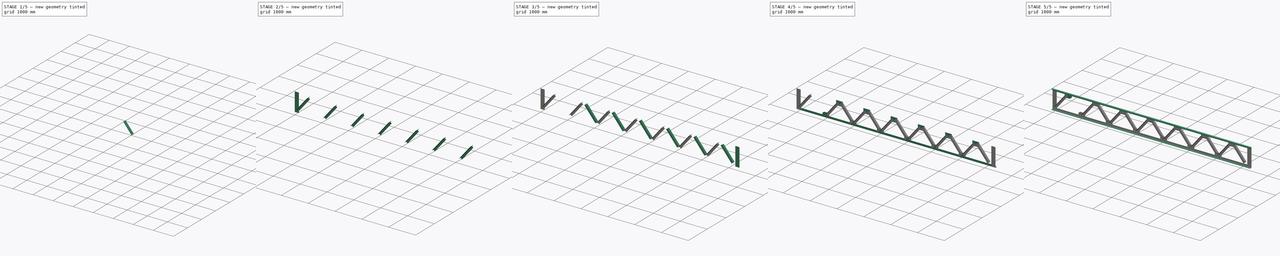
[diagram: build sequence overview — one tinted view per stage of 5, left to right]
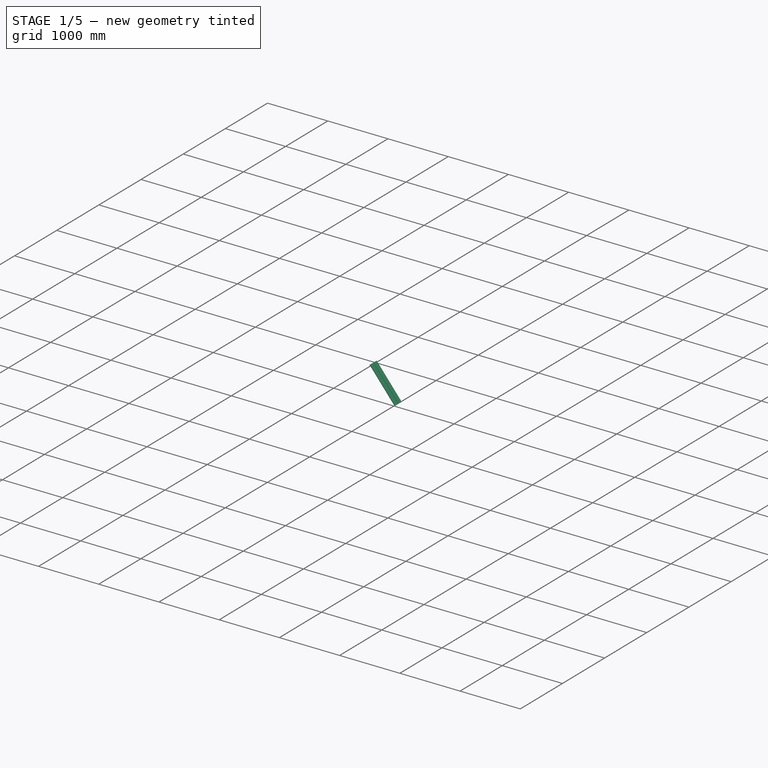
[diagram: stage 1 of 5 — iso view after this stage's code; geometry added in this stage tinted green]
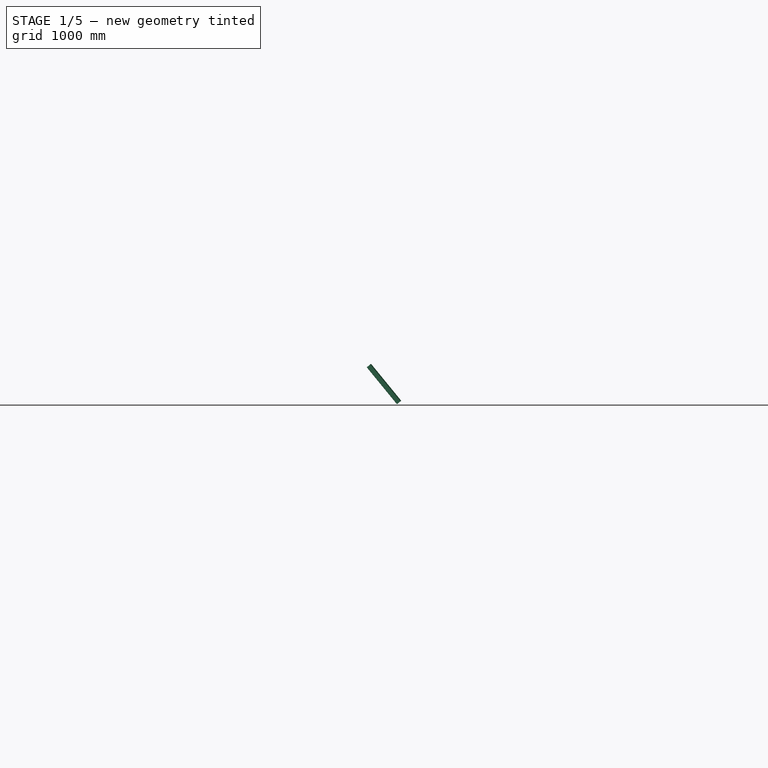
[diagram: stage 1 of 5 — front view after this stage's code; geometry added in this stage tinted green]
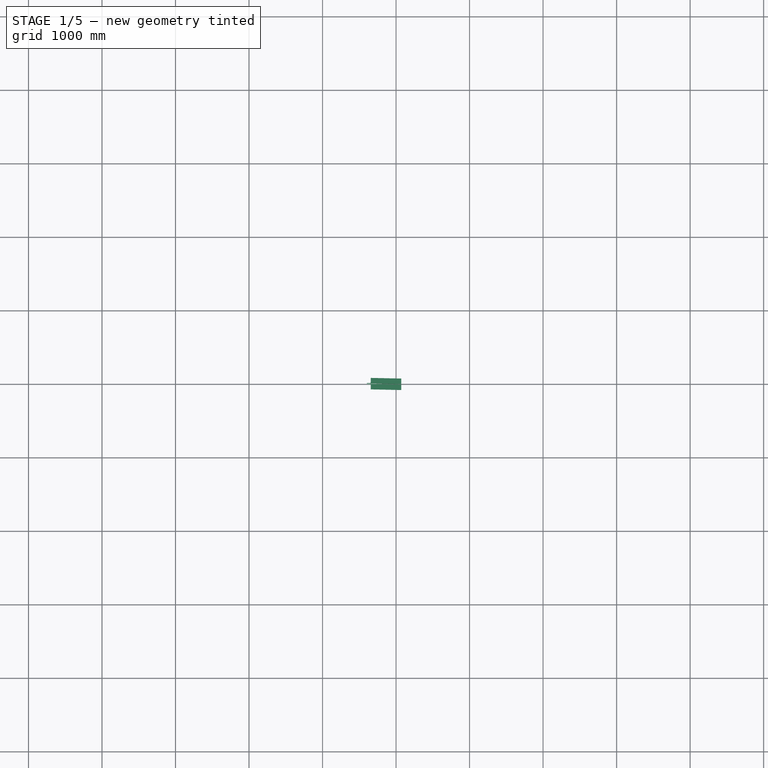
[diagram: stage 1 of 5 — top view after this stage's code; geometry added in this stage tinted green]
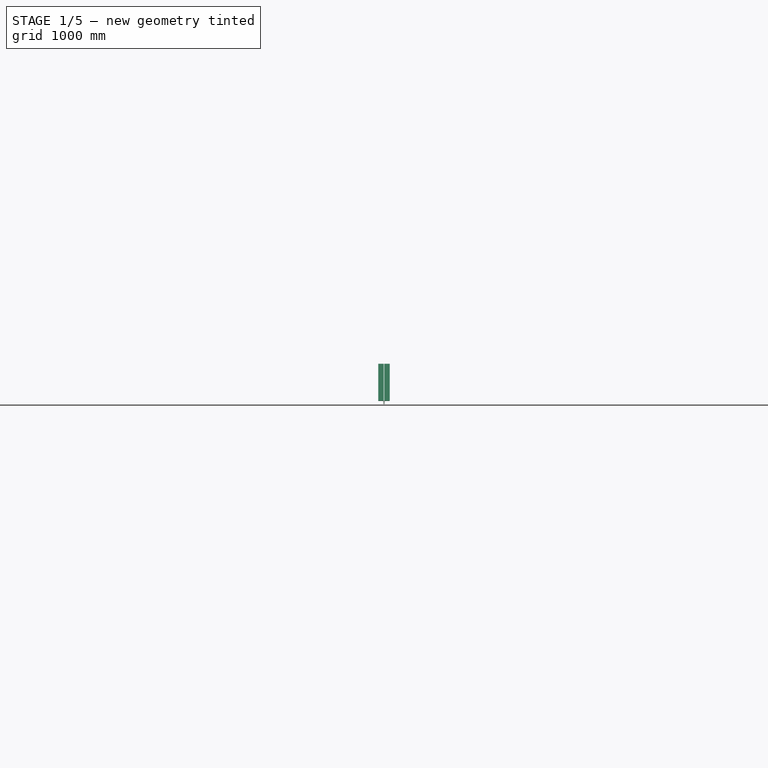
[diagram: stage 1 of 5 — right view after this stage's code; geometry added in this stage tinted green]
FCSTD DOCUMENT  (FreeCAD 1.0R39319 (Git))
Label: TrussBeam
License: All rights reserved
objects: Part::FeaturePython×9, Part::Extrusion×5, Part::Mirroring×5, Sketcher::SketchObject×3, Spreadsheet::Sheet×1, Part::MultiFuse×1, App::Part×1
note: 22 computed .brp shape members not serialized (recipe doc carries the construction recipe); baked Part::Feature solids carry a one-line shape summary decoded from their .brp

FEATURE [Part::FeaturePython] AngleSteel002  label="AngleSteel20"  # WARN: FeaturePython — macro-defined, semantics opaque (R4)
  A = 75
  B = 75
  L = 669.506
  Placement = pos=(37.5,-3,-1e-15) rot=(0.57735,-0.57735,-0.57735;2.0944rad)
  Solid = false
  g0 = 7.85
  mass = 0
  size = 10
  standard = SS_Equal
  t = 6
  expr: .Placement.Base.x = Spreadsheet.Lb0 / 2
  expr: L = 669.506022213547
FEATURE [Part::Extrusion] Extrude004  label="lattice"
  Base = -> AngleSteel002
  Dir = (-2e-16,-2e-16,1)
  DirMode = 2
  FaceMakerClass = Part::FaceMakerBullseye
  FaceMakerMode = 3
  LengthFwd = 648.996
  LengthRev = 0
  Placement = pos=(1041.4,0,95.7771) rot=(0,-1,0;0.685539rad)
  Solid = false
  Symmetric = false
  expr: .Placement.Base.x = Spreadsheet.Gb0 / 2 + Spreadsheet.rp0 - Spreadsheet.lx - 30
  expr: .Placement.Base.z = Spreadsheet.gL0 + Spreadsheet.lz + 20
  expr: .Placement.Rotation.Angle = 90 - Spreadsheet.sita
  expr: LengthFwd = Spreadsheet.L00
FEATURE [Part::Mirroring] Mirror002  label="AngleSteel2 (mirrored)"
  Base = (-100,0,0)
  Normal = (0,-1,0)
  Source = -> Extrude004
FEATURE [Part::MultiFuse] Fusion
  Refine = true
  Shapes = -> [Mirror002,Extrude004]
FEATURE [Part::FeaturePython] Clone003  label="Fusion001"  # Draft clone (typed FeaturePython)
  AttacherType = Attacher::AttachEngine3D
  Fuse = false
  Objects = -> [Fusion]
  Scale = (1,1,1)
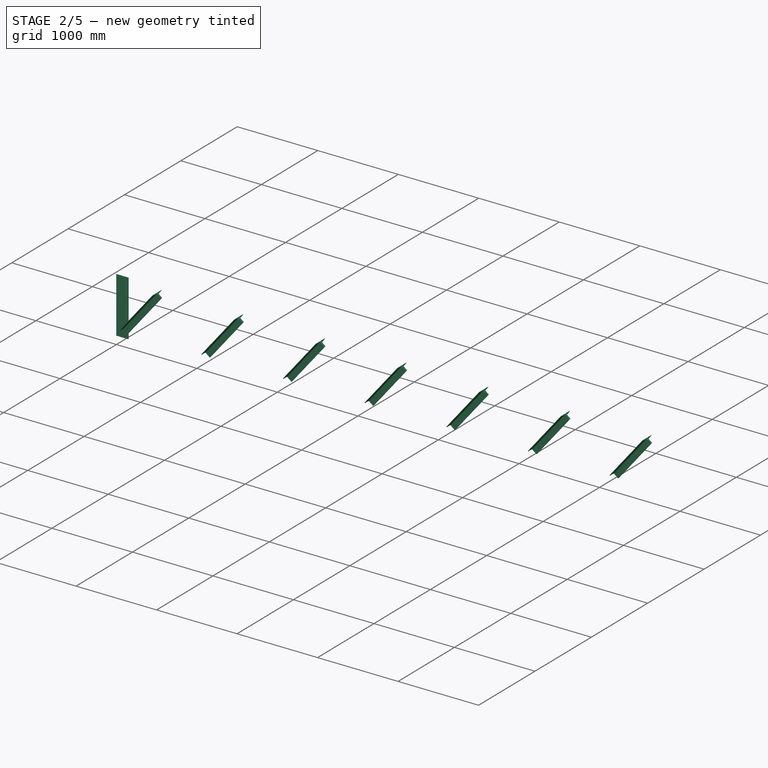
[diagram: stage 2 of 5 — iso view after this stage's code; geometry added in this stage tinted green]
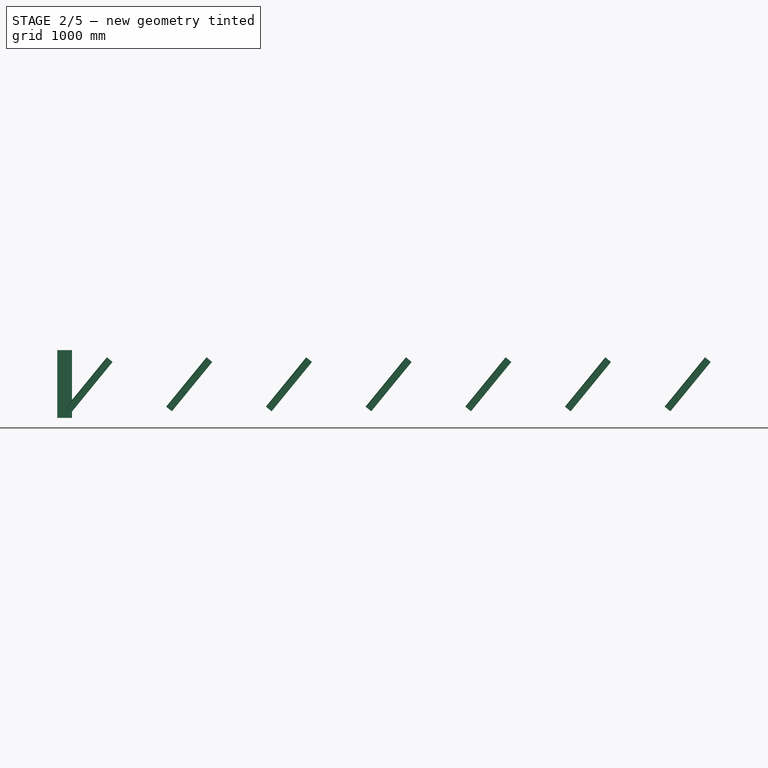
[diagram: stage 2 of 5 — front view after this stage's code; geometry added in this stage tinted green]
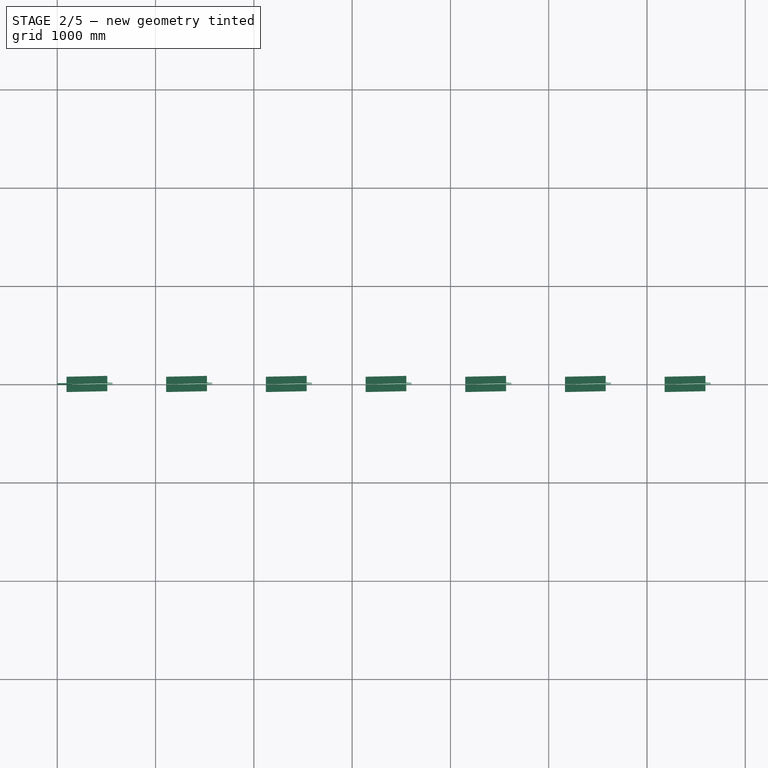
[diagram: stage 2 of 5 — top view after this stage's code; geometry added in this stage tinted green]
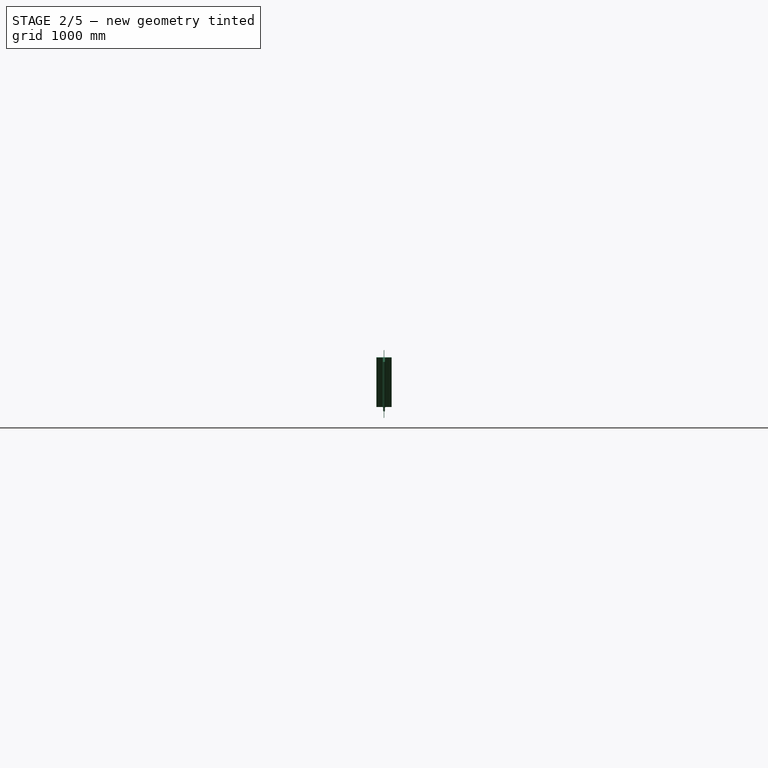
[diagram: stage 2 of 5 — right view after this stage's code; geometry added in this stage tinted green]
FEATURE [Sketcher::SketchObject] Sketch001
  ArcFitTolerance = 0
  FullyConstrained = false
  MakeInternals = false
  Placement = pos=(0,0,0) rot=(1,0,0;1.5708rad)
  expr: Constraints[10] = Spreadsheet.H0 - 10
  expr: Constraints[8] = Spreadsheet.Gb0
  sketch-geometry (4):
    g0: LineSegment StartX=0 StartY=5 StartZ=0 EndX=150 EndY=5 EndZ=0
    g1: LineSegment StartX=150 StartY=5 StartZ=0 EndX=150 EndY=695 EndZ=0
    g2: LineSegment StartX=150 StartY=695 StartZ=0 EndX=0 EndY=695 EndZ=0
    g3: LineSegment StartX=0 StartY=695 StartZ=0 EndX=0 EndY=5 EndZ=0
  constraints (11):
    c: Coincident(g0,g3)
    c: Coincident(g2,g3)
    c: Coincident(g0,g1)
    c: Coincident(g1,g2)
    c: DistanceY(g-1,g0) = 5
    c: DistanceX(g-1,g0) = 0
    c: Vertical(g3)
    c: Horizontal(g2)
    c: DistanceX(g0,g0) = 150
    c: Vertical(g1)
    c: DistanceY(g3,g3) = 690
FEATURE [Part::Extrusion] Extrude002
  Base = -> Sketch001
  Dir = (0,-1,2e-16)
  DirMode = 2
  FaceMakerClass = Part::FaceMakerBullseye
  FaceMakerMode = 3
  LengthFwd = 6
  LengthRev = 0
  Placement = pos=(0,3,0) rot=(0,0,1;0rad)
  Solid = true
  Symmetric = false
  expr: .Placement.Base.y = Spreadsheet.Lt0 / 2
FEATURE [Part::Mirroring] Mirror006  label="Fusion001 (mirrored)"
  Base = (0,-93,3.86e-14)
  Normal = (1,0,0)
  Placement = pos=(1164.29,0,0) rot=(0,0,1;0rad)
  Source = -> Clone003
  expr: .Placement.Base.x = Spreadsheet.rp0 + 150
FEATURE [Part::FeaturePython] Array005  # Draft array (typed FeaturePython)
  AlwaysSyncPlacement = false
  Angle = 360
  ArrayType = 0
  Axis = (0,0,1)
  Base = -> Mirror006
  Center = (0,0,0)
  Count = 7
  ExpandArray = false
  Fuse = false
  IntervalAxis = (0,0,0)
  IntervalX = (1014.29,0,0)
  IntervalY = (0,100,0)
  IntervalZ = (0,0,100)
  NumberCircles = 3
  NumberPolar = 5
  NumberX = 7
  NumberY = 1
  NumberZ = 1
  PlacementList = 7 placements: arithmetic series from (1164.29,0,0) step (1014.29,0,0) to (7250,0,0)
  RadialDistance = 50
  ScaleList = (7) [(1,1,1),(1,1,1),(1,1,1),(1,1,1),(1,1,1),(1,1,1),(1,1,1)]
  Symmetry = 1
  TangentialDistance = 25
  expr: .IntervalX.x = Spreadsheet.rp0
  expr: NumberX = Spreadsheet.m0 + 1
FEATURE [App::Part] Part  label="trussBeam"
  Group = -> [Spreadsheet,Clone002,Mirror002,Mirror001,Mirror,AngleSteel002,AngleSteel001,Clone,Array,Array004,Array002,Sketch,Extrude,Extrude002,Extrude005,Extrude003,Extrude004,Clone003,Array005,Sketch002,Fusion,Mirror006,Mirror005,Sketch001]
  JPN = トラス梁
  Origin = -> Origin
  Placement = pos=(-250.548,-342.91,-245.206) rot=(0,0,1;0rad)
  g0 = 7.85
  mass = 543.969
  material = SS41
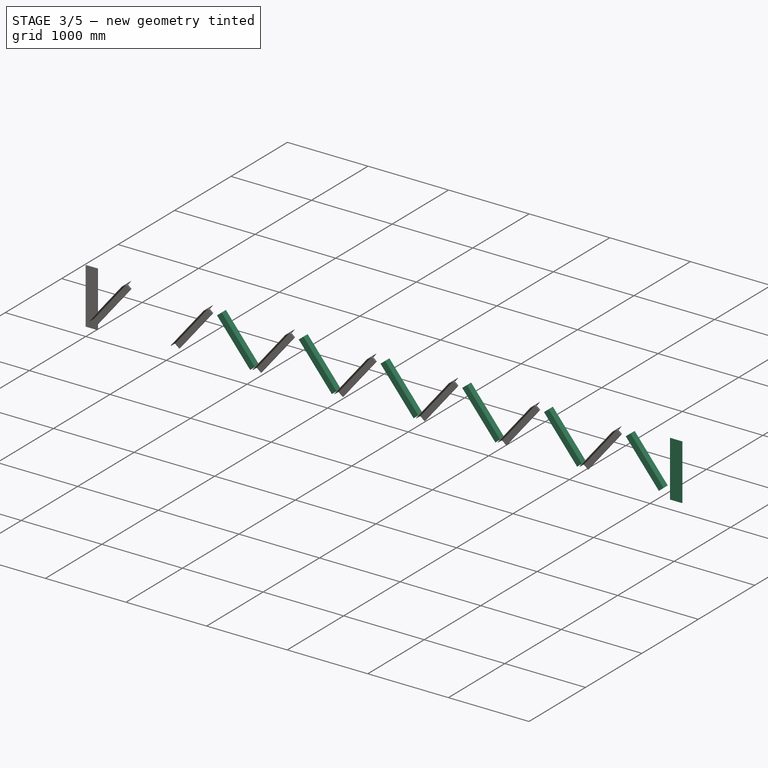
[diagram: stage 3 of 5 — iso view after this stage's code; geometry added in this stage tinted green]
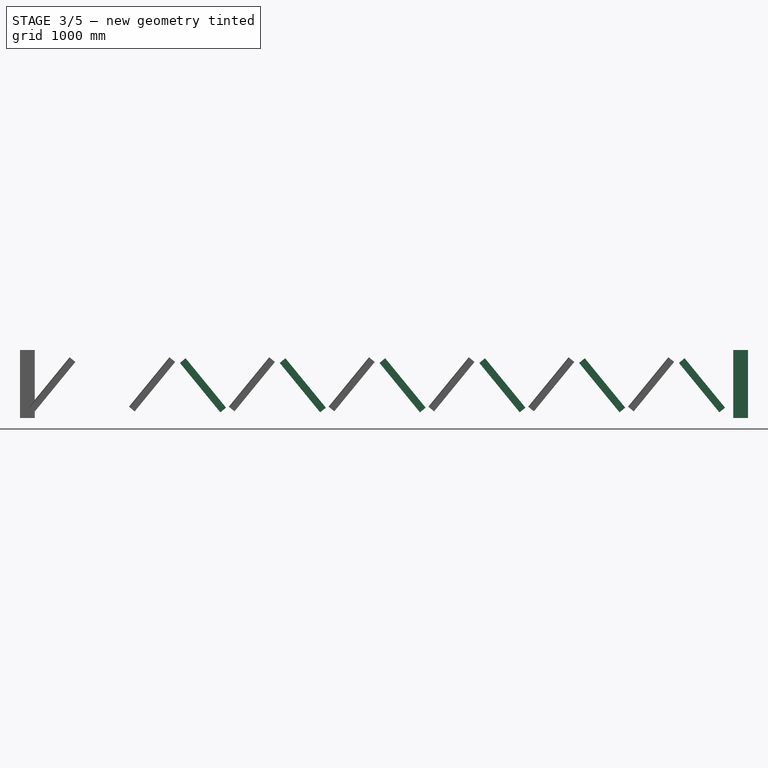
[diagram: stage 3 of 5 — front view after this stage's code; geometry added in this stage tinted green]
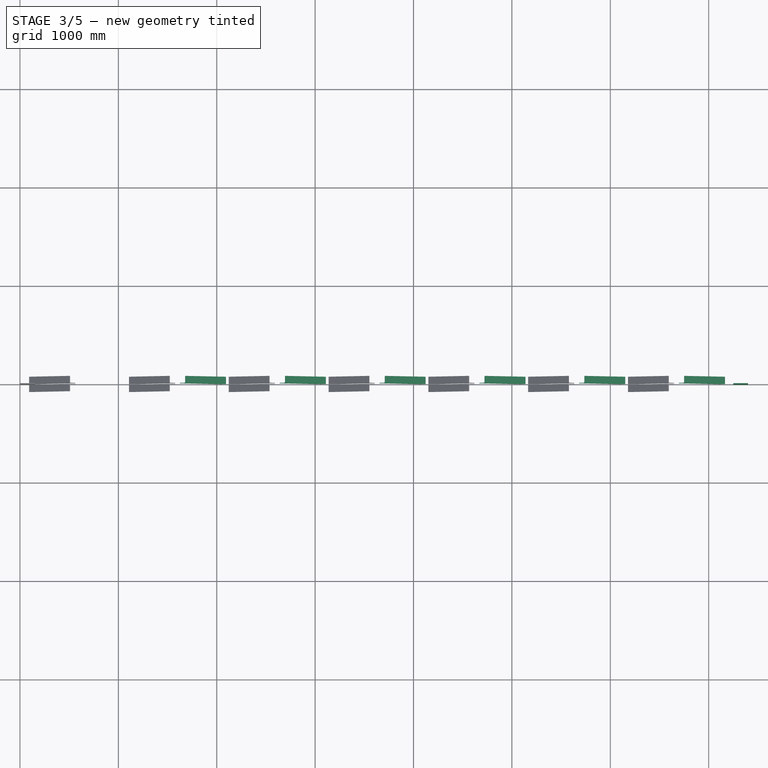
[diagram: stage 3 of 5 — top view after this stage's code; geometry added in this stage tinted green]
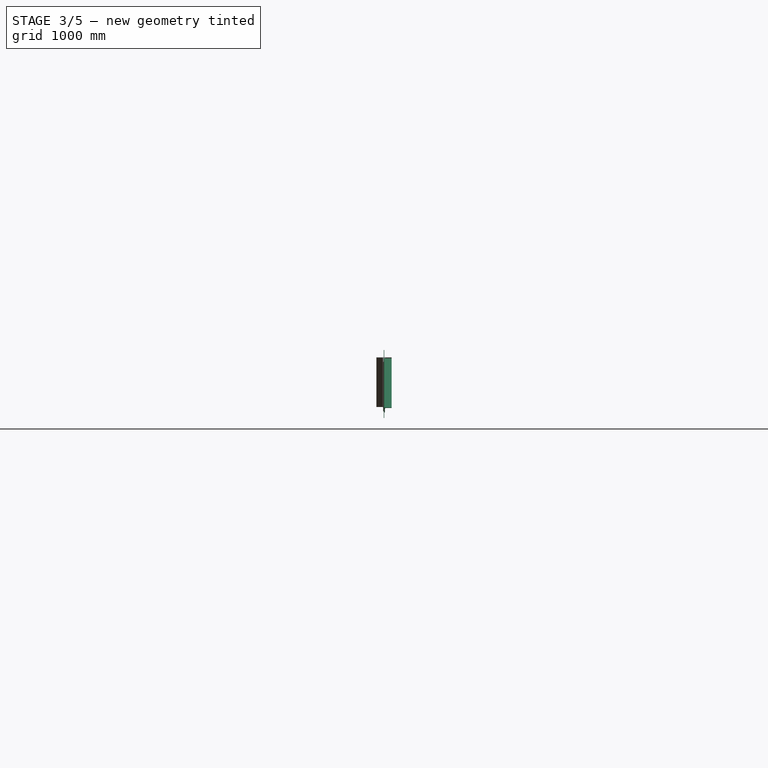
[diagram: stage 3 of 5 — right view after this stage's code; geometry added in this stage tinted green]
FEATURE [Part::FeaturePython] Clone002  label="lattice003"  # Draft clone (typed FeaturePython)
  AttacherType = Attacher::AttachEngine3D
  Fuse = false
  Objects = -> [Extrude004]
  Placement = pos=(2065.68,0,85.7771) rot=(0,-1,0;0.685539rad)
  Scale = (1,1,1)
  expr: .Placement.Base.x = Spreadsheet.Gb0 / 2 + Spreadsheet.rp0 * 2 - Spreadsheet.lx - 20
  expr: .Placement.Base.z = Spreadsheet.gL0 + Spreadsheet.lz + 10
  expr: .Placement.Rotation.Angle = 90 - Spreadsheet.sita
FEATURE [Part::FeaturePython] Array002  # Draft array (typed FeaturePython)
  AlwaysSyncPlacement = false
  Angle = 360
  ArrayType = 0
  Axis = (0,0,1)
  Base = -> Clone002
  Center = (0,0,0)
  Count = 6
  ExpandArray = false
  Fuse = false
  IntervalAxis = (0,0,0)
  IntervalX = (1014.29,0,0)
  IntervalY = (0,100,0)
  IntervalZ = (0,0,100)
  NumberCircles = 3
  NumberPolar = 5
  NumberX = 6
  NumberY = 1
  NumberZ = 1
  PlacementList = 6 placements: arithmetic series from (2065.68,0,85.7771) step (1014.29,0,0) to (7137.11,0,85.7771)
  RadialDistance = 50
  ScaleList = (6) [(1,1,1),(1,1,1),(1,1,1),(1,1,1),(1,1,1),(1,1,1)]
  Symmetry = 1
  TangentialDistance = 25
  expr: .IntervalX.x = Spreadsheet.rp0
  expr: NumberX = Spreadsheet.m0
FEATURE [Part::Mirroring] Mirror005  label="Array002 (mirrored)"
  Base = (-100,0,0)
  Normal = (0,1,0)
  Source = -> Array002
FEATURE [Part::FeaturePython] Array004  # Draft array (typed FeaturePython)
  AlwaysSyncPlacement = false
  Angle = 360
  ArrayType = 0
  Axis = (0,0,1)
  Base = -> Extrude002
  Center = (0,0,0)
  Count = 2
  ExpandArray = false
  Fuse = false
  IntervalAxis = (0,0,0)
  IntervalX = (7250,0,0)
  IntervalY = (0,100,0)
  IntervalZ = (0,0,100)
  NumberCircles = 3
  NumberPolar = 5
  NumberX = 2
  NumberY = 1
  NumberZ = 1
  PlacementList = 2 placements: [(0,3,0),(7250,3,0)]
  RadialDistance = 50
  ScaleList = (2) [(1,1,1),(1,1,1)]
  Symmetry = 1
  TangentialDistance = 25
  expr: .IntervalX.x = Spreadsheet.L0 - Spreadsheet.Gb0
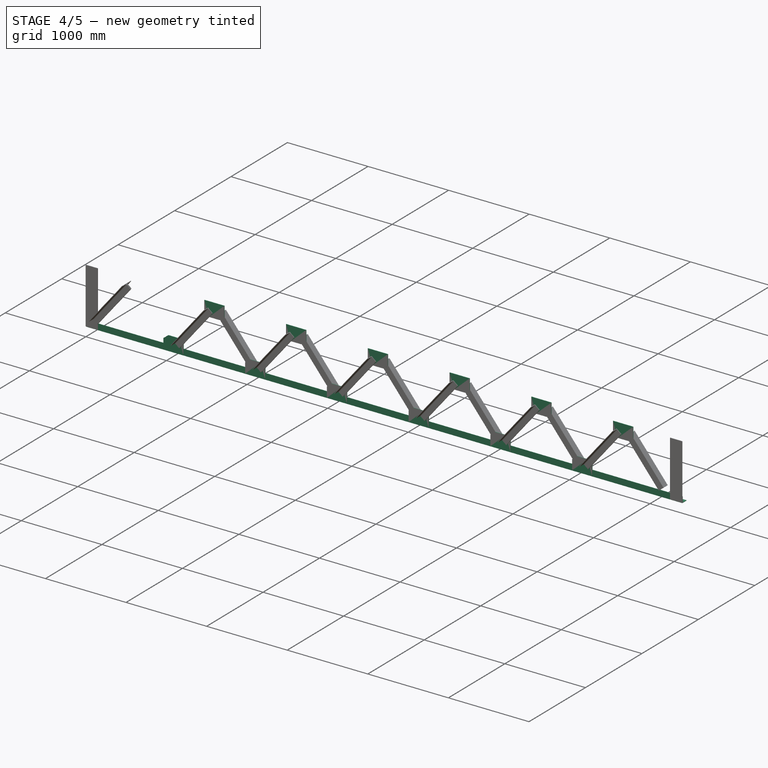
[diagram: stage 4 of 5 — iso view after this stage's code; geometry added in this stage tinted green]
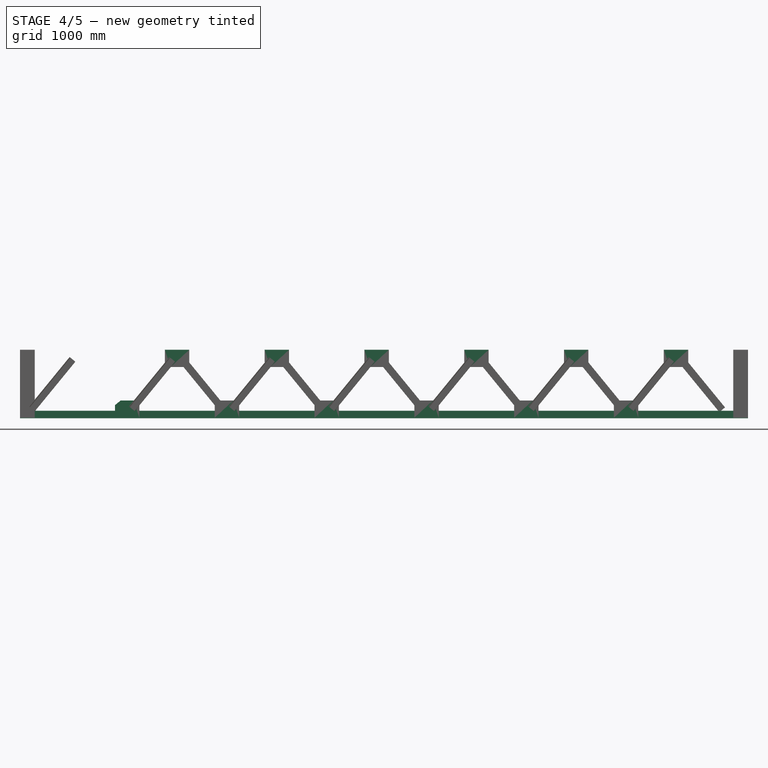
[diagram: stage 4 of 5 — front view after this stage's code; geometry added in this stage tinted green]
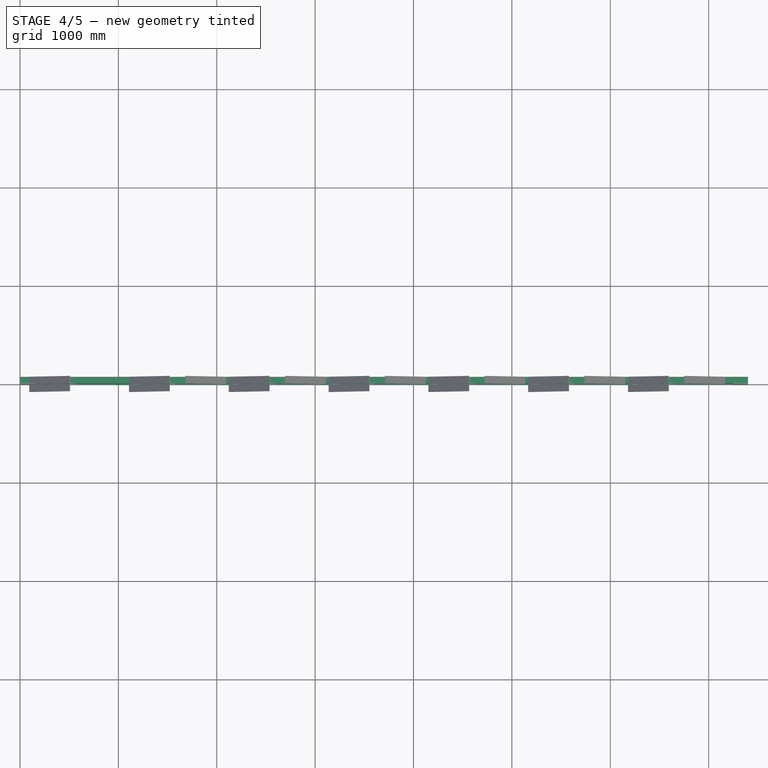
[diagram: stage 4 of 5 — top view after this stage's code; geometry added in this stage tinted green]
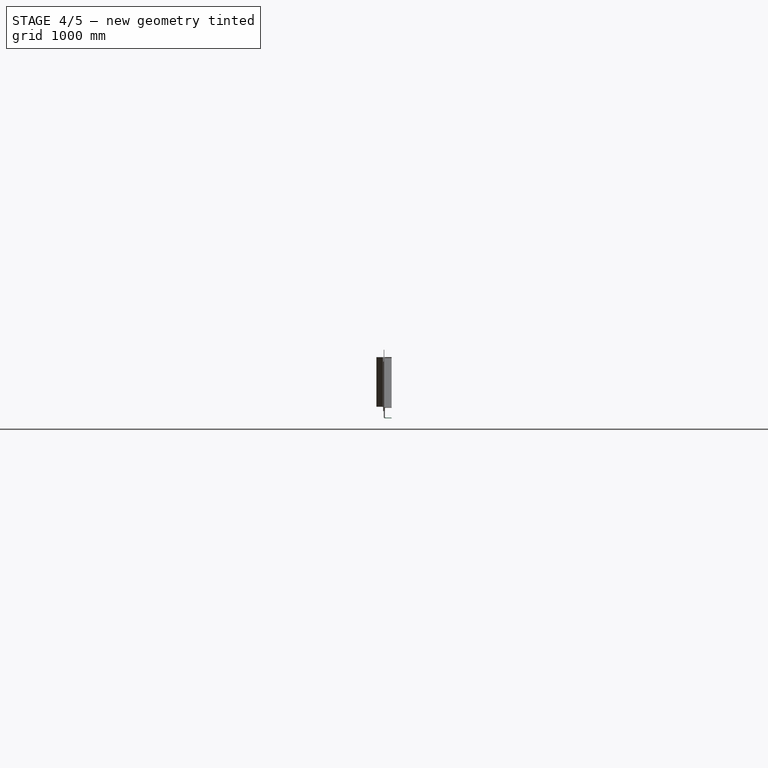
[diagram: stage 4 of 5 — right view after this stage's code; geometry added in this stage tinted green]
FEATURE [Part::FeaturePython] AngleSteel001  label="genzai01"  # WARN: FeaturePython — macro-defined, semantics opaque (R4)
  A = 75
  B = 75
  L = 1000
  Placement = pos=(0,0,0) rot=(0.57735,0.57735,0.57735;4.18879rad)
  Solid = false
  g0 = 7.85
  mass = 0
  size = 10
  standard = SS_Equal
  t = 6
FEATURE [Part::Extrusion] Extrude  label="genzai"
  Base = -> AngleSteel001
  Dir = (1,0,0)
  DirMode = 2
  FaceMakerClass = Part::FaceMakerBullseye
  FaceMakerMode = 3
  LengthFwd = 7400
  LengthRev = 0
  Placement = pos=(0,3,0) rot=(0,0,1;0rad)
  Solid = false
  Symmetric = false
  expr: .Placement.Base.y = Spreadsheet.Lt0 / 2
  expr: LengthFwd = Spreadsheet.L0
FEATURE [Sketcher::SketchObject] Sketch
  ArcFitTolerance = 0
  FullyConstrained = true
  MakeInternals = false
  Placement = pos=(0,0,0) rot=(1,0,0;1.5708rad)
  expr: Constraints[17] = Spreadsheet.Gb0 / 2
  expr: Constraints[18] = Spreadsheet.gL0
  expr: Constraints[19] = Spreadsheet.H0 - Spreadsheet.gL0
  expr: Constraints[20] = Spreadsheet.a0
  expr: Constraints[21] = Spreadsheet.Lb0 / 2
  expr: Constraints[22] = Spreadsheet.rp0
  expr: Constraints[23] = Spreadsheet.Lb0 / 2
  expr: Constraints[39] = Spreadsheet.a0
  expr: Constraints[40] = Spreadsheet.a0
  expr: Constraints[45] = Spreadsheet.Lb0
  expr: Constraints[46] = Spreadsheet.H0 - 5
  expr: Constraints[47] = Spreadsheet.Lb0
  expr: Constraints[48] = Spreadsheet.Lb0 / 2
  sketch-geometry (16):
    g0: LineSegment [constr] StartX=75 StartY=40 StartZ=0 EndX=582.143 EndY=660 EndZ=0
    g1: LineSegment [constr] StartX=582.143 StartY=660 StartZ=0 EndX=1089.29 EndY=40 EndZ=0
    g2: LineSegment [constr] StartX=1089.29 StartY=40 StartZ=0 EndX=1596.43 EndY=660 EndZ=0
    g3: LineSegment StartX=965.288 StartY=5 StartZ=0 EndX=1213.28 EndY=5 EndZ=0
    g4: LineSegment StartX=1213.28 StartY=5 StartZ=0 EndX=1213.28 EndY=132.363 EndZ=0
    g5: LineSegment StartX=965.288 StartY=132.363 StartZ=0 EndX=965.288 EndY=5 EndZ=0
    g6: LineSegment StartX=965.288 StartY=132.363 StartZ=0 EndX=1023.34 EndY=179.848 EndZ=0
    g7: LineSegment StartX=1155.23 StartY=179.848 StartZ=0 EndX=1213.28 EndY=132.363 EndZ=0
    g8: LineSegment StartX=1155.23 StartY=179.848 StartZ=0 EndX=1023.34 EndY=179.848 EndZ=0
    g9: LineSegment [constr] StartX=1596.43 StartY=660 StartZ=0 EndX=2103.57 EndY=40 EndZ=0
    g10: LineSegment StartX=1472.43 StartY=695 StartZ=0 EndX=1720.43 EndY=695 EndZ=0
    g11: LineSegment StartX=1720.43 StartY=695 StartZ=0 EndX=1720.43 EndY=567.637 EndZ=0
    g12: LineSegment StartX=1720.43 StartY=567.637 StartZ=0 EndX=1662.37 EndY=520.152 EndZ=0
    g13: LineSegment StartX=1662.37 StartY=520.152 StartZ=0 EndX=1530.48 EndY=520.152 EndZ=0
    g14: LineSegment StartX=1530.48 StartY=520.152 StartZ=0 EndX=1472.43 EndY=567.637 EndZ=0
    g15: LineSegment StartX=1472.43 StartY=567.637 StartZ=0 EndX=1472.43 EndY=695 EndZ=0
  constraints (49):
    c: Coincident(g0,g1)
    c: Coincident(g1,g2)
    c: Horizontal(g1,g0)
    c: Coincident(g3,g4)
    c: Coincident(g5,g3)
    c: Horizontal(g3)
    c: Vertical(g4)
    c: Vertical(g5)
    c: Coincident(g5,g6)
    c: Coincident(g8,g6)
    c: Coincident(g8,g7)
    c: Coincident(g4,g7)
    c: Perpendicular(g6,g1)
    c: Perpendicular(g7,g2)
    c: Horizontal(g8)
    c: Distance(g3,g-1) = 5
    c: Horizontal(g5,g4)
    c: DistanceX(g-1,g0) = 75
    c: DistanceY(g-1,g0) = 40
    c: DistanceY(g-1,g0) = 660
    c: Distance(g1,g6) = 150
    c: Distance(g7,g2) = 37.5
    c: DistanceX(g0,g1) = 1014.29
    c: Distance(g6,g1) = 37.5
    c: Coincident(g9,g2)
    c: Parallel(g1,g9)
    c: Horizontal(g0,g2)
    c: Horizontal(g10)
    c: Coincident(g10,g11)
    c: Vertical(g11)
    c: Coincident(g11,g12)
    c: Coincident(g12,g13)
    c: Horizontal(g13)
    c: Coincident(g13,g14)
    c: Coincident(g14,g15)
    c: Coincident(g15,g10)
    c: Vertical(g15)
    c: Perpendicular(g2,g14)
    c: Perpendicular(g9,g12)
    c: Distance(g2,g14) = 150
    c: Distance(g2,g12) = 150
    c: Horizontal(g14,g11)
    c: Horizontal(g1,g9)
    c: Equal(g1,g0)
    c: Equal(g1,g2)
    c: Distance(g7,g7) = 75
    c: Distance(g10,g-1) = 695
    c: Distance(g14,g14) = 75
    c: Distance(g14,g2) = 37.5
FEATURE [Part::Extrusion] Extrude003
  Base = -> Sketch
  Dir = (0,-1,2e-16)
  DirMode = 2
  FaceMakerClass = Part::FaceMakerBullseye
  FaceMakerMode = 3
  LengthFwd = 6
  LengthRev = 0
  Placement = pos=(0,3,0) rot=(0,0,1;0rad)
  Solid = true
  Symmetric = false
FEATURE [Part::FeaturePython] Array  # Draft array (typed FeaturePython)
  AlwaysSyncPlacement = false
  Angle = 360
  ArrayType = 0
  Axis = (0,0,1)
  Base = -> Extrude003
  Center = (0,0,0)
  Count = 6
  ExpandArray = false
  Fuse = false
  IntervalAxis = (0,0,0)
  IntervalX = (1014.29,0,0)
  IntervalY = (0,100,0)
  IntervalZ = (0,0,100)
  NumberCircles = 3
  NumberPolar = 5
  NumberX = 6
  NumberY = 1
  NumberZ = 1
  PlacementList = 6 placements: arithmetic series from (0,3,0) step (1014.29,0,0) to (5071.43,3,0)
  RadialDistance = 50
  ScaleList = (6) [(1,1,1),(1,1,1),(1,1,1),(1,1,1),(1,1,1),(1,1,1)]
  Symmetry = 1
  TangentialDistance = 25
  expr: .IntervalX.x = Spreadsheet.rp0
  expr: NumberX = Spreadsheet.m0
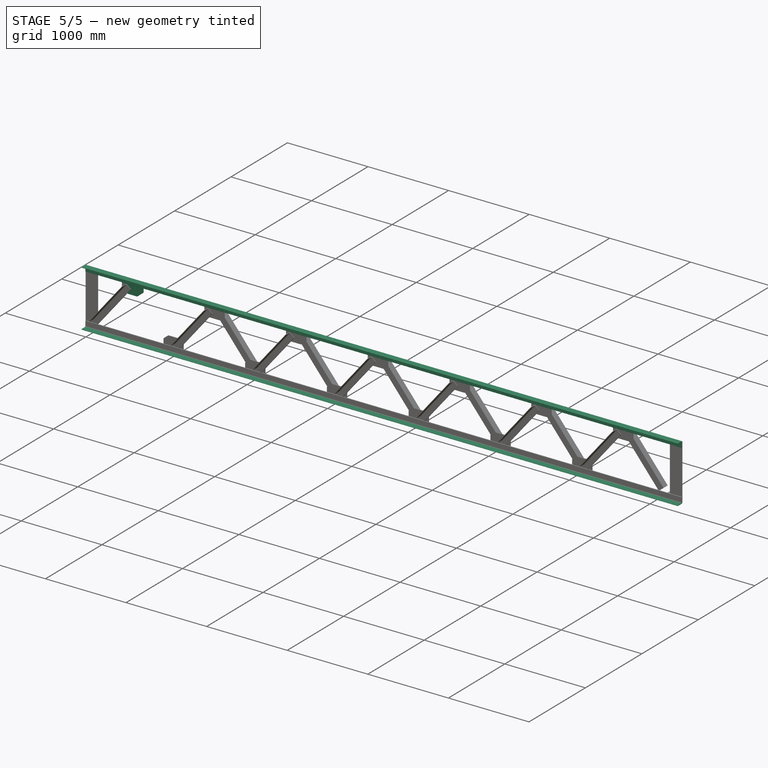
[diagram: stage 5 of 5 — iso view after this stage's code; geometry added in this stage tinted green]
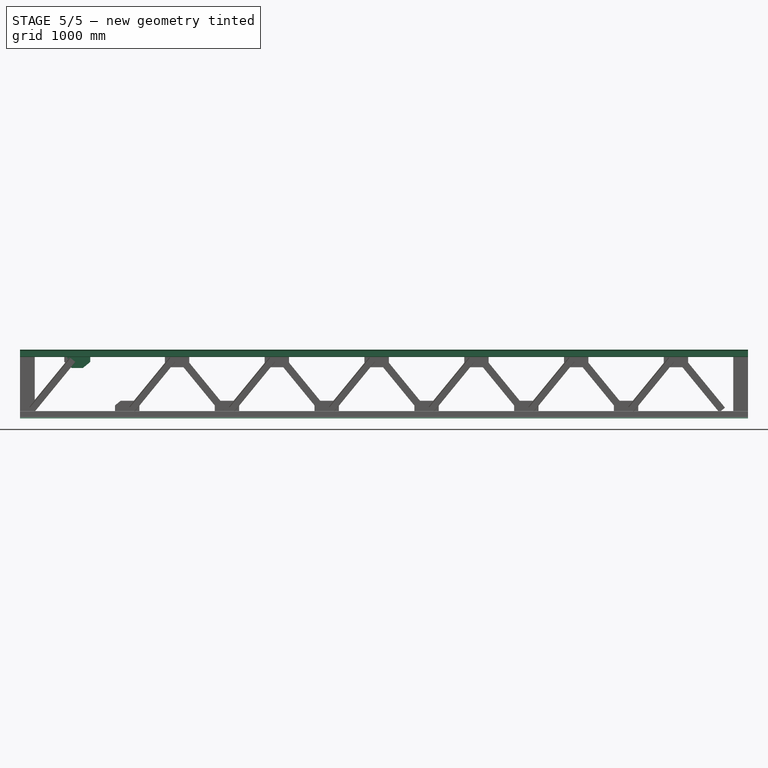
[diagram: stage 5 of 5 — front view after this stage's code; geometry added in this stage tinted green]
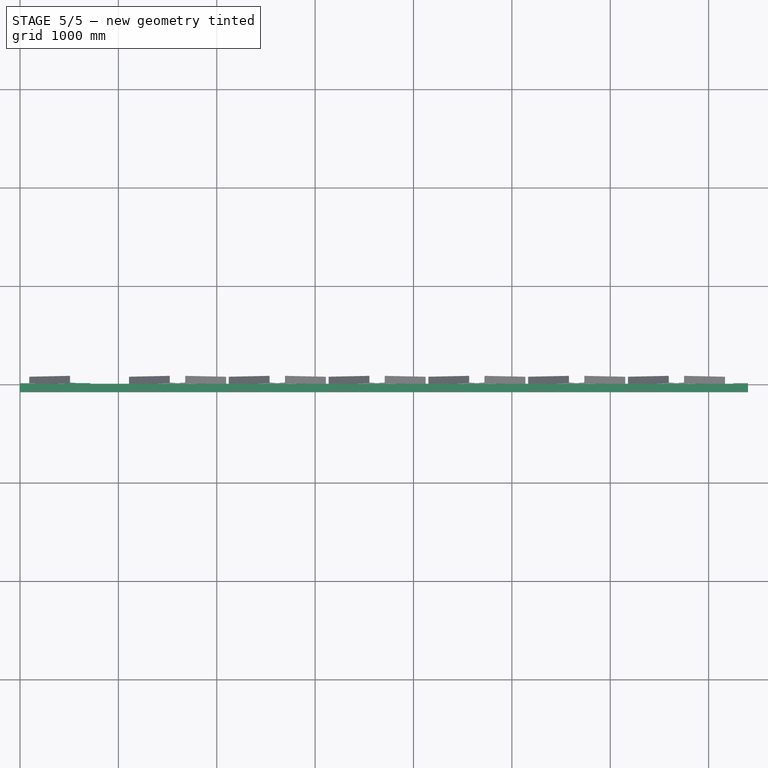
[diagram: stage 5 of 5 — top view after this stage's code; geometry added in this stage tinted green]
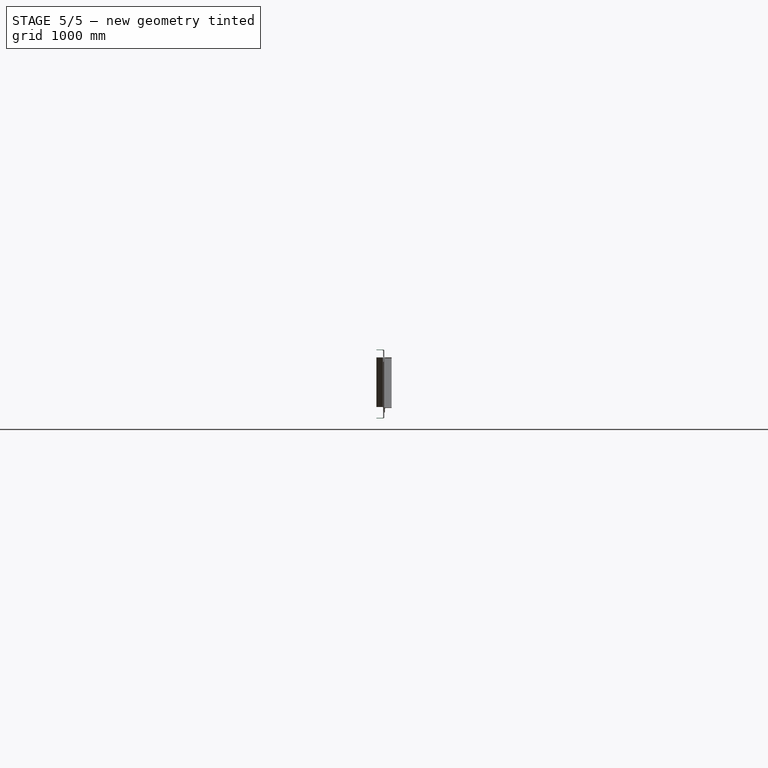
[diagram: stage 5 of 5 — right view after this stage's code; geometry added in this stage tinted green]
FEATURE [Spreadsheet::Sheet] Spreadsheet
  cells = A1='梁成H0; B1(H0)=700; C1(myType)='Truss; A2='梁長L0; B2(L0)=7400; A3='玄材shp; B3(shp)='75x75x6; A4='玄材ゲージgL0; B4(gL0)=40; A5='ラチス材Lshp; B5(Lshp)='75x75x6; A6='ラチス材ゲージgL1; B6(gL1)=40; A7='ラチス材幅Lb0; B7(Lb0)=75; A8='ラチス角度sita; B8(sita)=50.7215189130349; A9='ラチスlx; B9(lx)=17.8885438199983; A10='ラチスlz; B10(lz)=35.7770876399966; A11='ラチス lt; B11(lt)==(lx ^ 2 + lz ^ 2) ^ 0.5; A12='ラチスL00; B12(L00)==((H0 - gL0 * 2) ^ 2 + (rp0 / 2) ^ 2) ^ 0.5 - (lt * 2 + gL0 * 1.8); A13='ラチスピッチrp0; B13(rp0)=1014.28571428571; A14='ラチス配列数rn0; B14(m0)=6; A15='ガセット厚Lt0; B15(Lt0)=6; A16='端部ガセット幅Gb0; B16(Gb0)=150; A17='ガセットa0; B17(a0)=150; B19='t; C19='A; D19='Gage; A20='40x40x3; B20=3; C20=40; D20=22; A21='40x40x5; B21=5; C21=40; D21=22; A22='50x50x4; B22=4; C22=50; D22=30; A23='50x50x6; B23=6; C23=50; D23=30; A24='65x65x6; B24=6; C24=65; D24=35; A25='65x65x8; B25=8; C25=65; D25=35; A26='75x75x6; B26=6; C26=75; D26=40; A27='75x75x9; B27=9; C27=75; D27=40; A28='75x75x12; B28=12; C28=75; D28=40; A29='90x90x7; B29=7; C29=90; D29=50; A30='90x90x10; B30=10; C30=90; D30=50; A31='90x90x13; B31=13; C31=90; D31=50; A32='100x100x7; B32=7; C32=100; D32=55; A33='100x100x10; B33=10; C33=100; D33=55; A34='100x100x13; B34=13; C34=100; D34=55
FEATURE [Part::FeaturePython] Clone  label="genzai2"  # Draft clone (typed FeaturePython)
  AttacherType = Attacher::AttachEngine3D
  Fuse = false
  Objects = -> [Extrude]
  Placement = pos=(0,3,700) rot=(-1,0,0;1.5708rad)
  Scale = (1,1,1)
  expr: .Placement.Base.y = Spreadsheet.Lt0 / 2
  expr: .Placement.Base.z = Spreadsheet.H0
FEATURE [Sketcher::SketchObject] Sketch002
  ArcFitTolerance = 0
  FullyConstrained = true
  MakeInternals = false
  Placement = pos=(0,0,0) rot=(1,0,0;1.5708rad)
  expr: .Constraints.gw = 150 * cos(Spreadsheet.sita) + Spreadsheet.Lb0 / 2
  expr: Constraints[0] = Spreadsheet.Gb0 / 2
  expr: Constraints[15] = Spreadsheet.a0
  expr: Constraints[18] = .Constraints.gw * 2
  expr: Constraints[1] = Spreadsheet.rp0 / 2
  expr: Constraints[6] = Spreadsheet.H0 - Spreadsheet.gL0
  expr: Constraints[7] = Spreadsheet.H0 - 5
  expr: Constraints[9] = Spreadsheet.gL0
  sketch-geometry (7):
    g0: LineSegment [constr] StartX=75 StartY=40 StartZ=0 EndX=582.143 EndY=660 EndZ=0
    g1: LineSegment StartX=449.679 StartY=695 StartZ=0 EndX=714.606 EndY=695 EndZ=0
    g2: LineSegment StartX=714.606 StartY=695 StartZ=0 EndX=714.606 EndY=574.562 EndZ=0
    g3: LineSegment StartX=449.679 StartY=574.562 StartZ=0 EndX=449.679 EndY=695 EndZ=0
    g4: LineSegment StartX=449.679 StartY=574.562 StartZ=0 EndX=524.664 EndY=513.227 EndZ=0
    g5: LineSegment StartX=524.664 StartY=513.227 StartZ=0 EndX=639.622 EndY=513.227 EndZ=0
    g6: LineSegment StartX=639.622 StartY=513.227 StartZ=0 EndX=714.606 EndY=574.562 EndZ=0
  constraints (23):
    c: DistanceX(g-1,g0) = 75
    c: DistanceX(g0,g0) = 507.143
    c: Horizontal(g1)
    c: Coincident(g1,g2)
    c: Vertical(g2)
    c: Coincident(g3,g1)
    c: Distance(g0,g-1) = 660
    c: Distance(g1,g-1) = 695
    c: Vertical(g3)
    c: DistanceY(g-1,g0) = 40
    c: Coincident(g3,g4)
    c: Coincident(g4,g5)
    c: Horizontal(g5)
    c: Coincident(g5,g6)
    c: Coincident(g6,g2)
    c: Distance(g0,g4) = 150
    c: Distance(g0) = 800.996  'lt0'
    c: DistanceX(g3,g0) = 132.464  'gw'
    c: DistanceX(g1,g1) = 264.927
    c: Angle(g5,g0) = 0.885192  's2'
    c: Horizontal(g3,g2)
    c: Symmetric(g4,g3,g0)
    c: Equal(g4,g6)
FEATURE [Part::Extrusion] Extrude005
  Base = -> Sketch002
  Dir = (0,-1,2e-16)
  DirMode = 2
  FaceMakerClass = Part::FaceMakerBullseye
  FaceMakerMode = 3
  LengthFwd = 6
  LengthRev = 0
  Placement = pos=(0,3,0) rot=(0,0,1;0rad)
  Solid = true
  Symmetric = false
FEATURE [Part::Mirroring] Mirror  label="genzai2 (mirrored)"
  Base = (5,1.545e-13,695)
  Normal = (-1.5e-15,1,0)
  Source = -> Clone
FEATURE [Part::Mirroring] Mirror001  label="genzai (mirrored)"
  Base = (0,0,0)
  Normal = (0,-1,1e-16)
  Source = -> Extrude
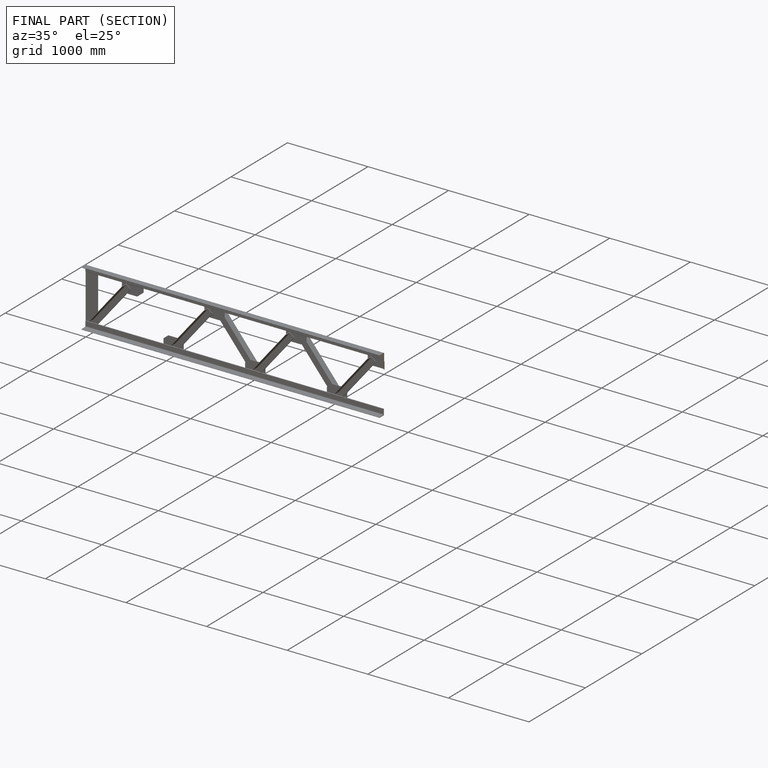
[diagram: finished part — half-section view (interior)]
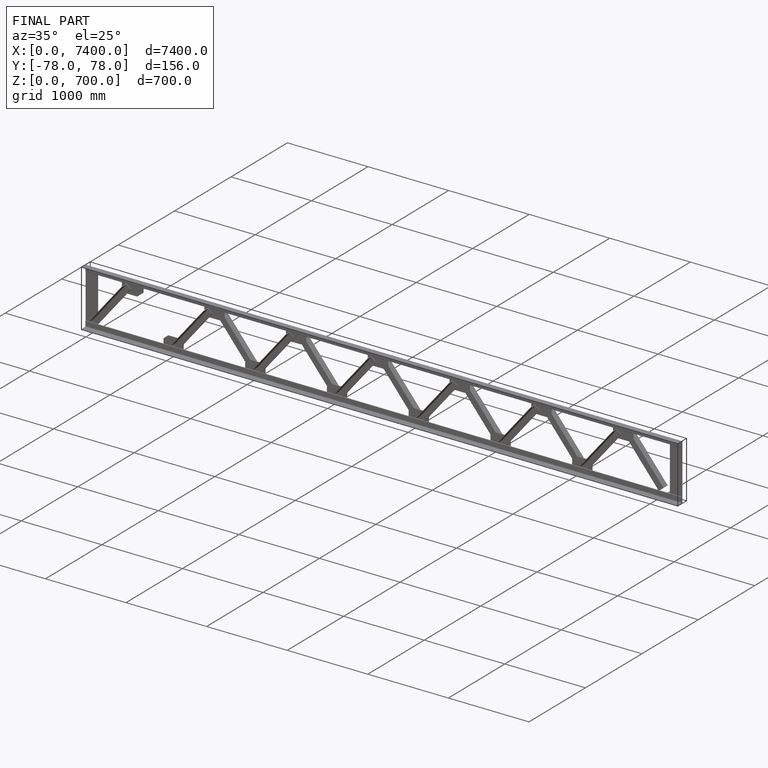
[diagram: finished part — iso view with bounding-box wireframe]
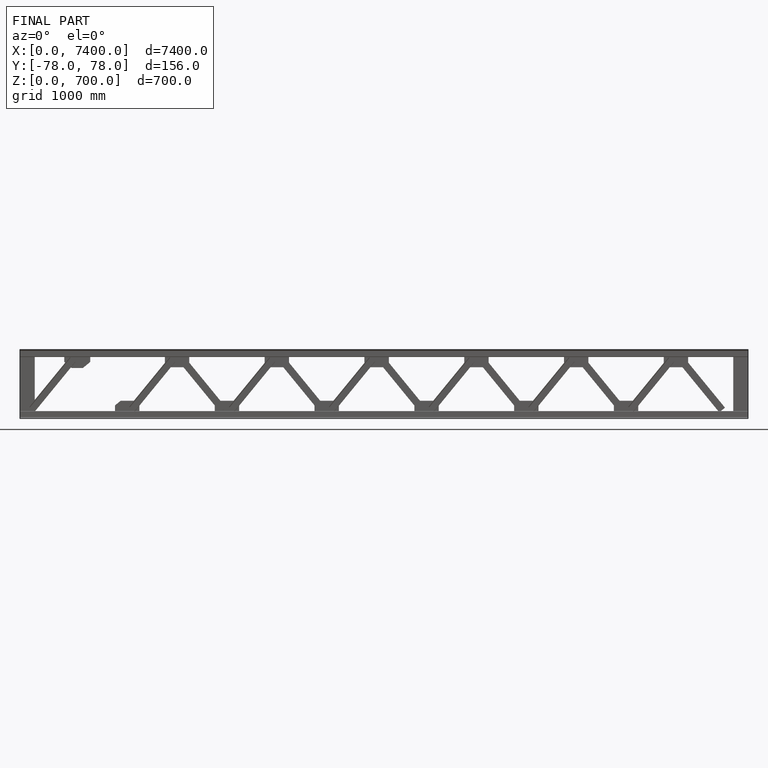
[diagram: finished part — front view with bounding-box wireframe]
